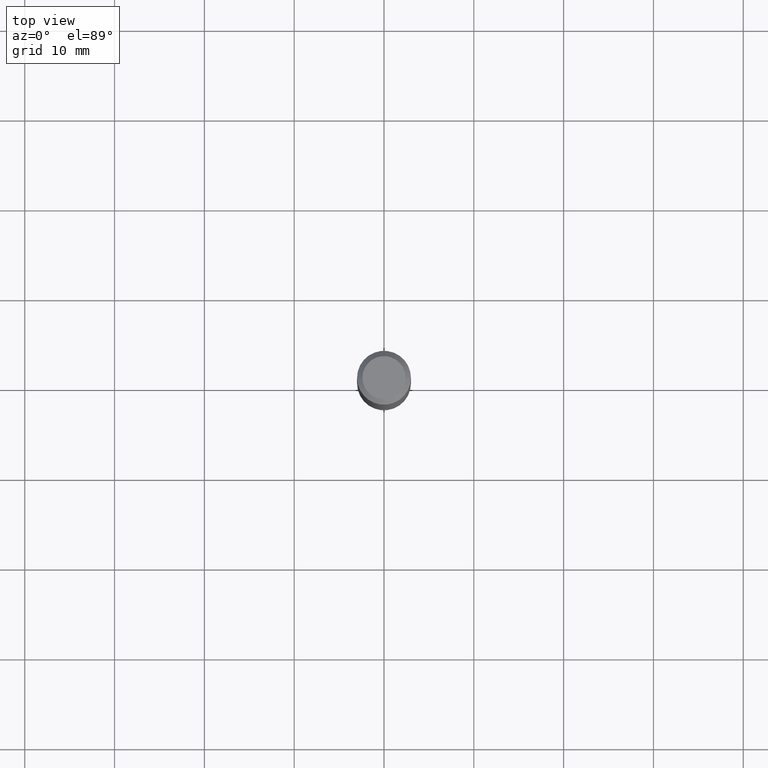
[diagram: clean part render]
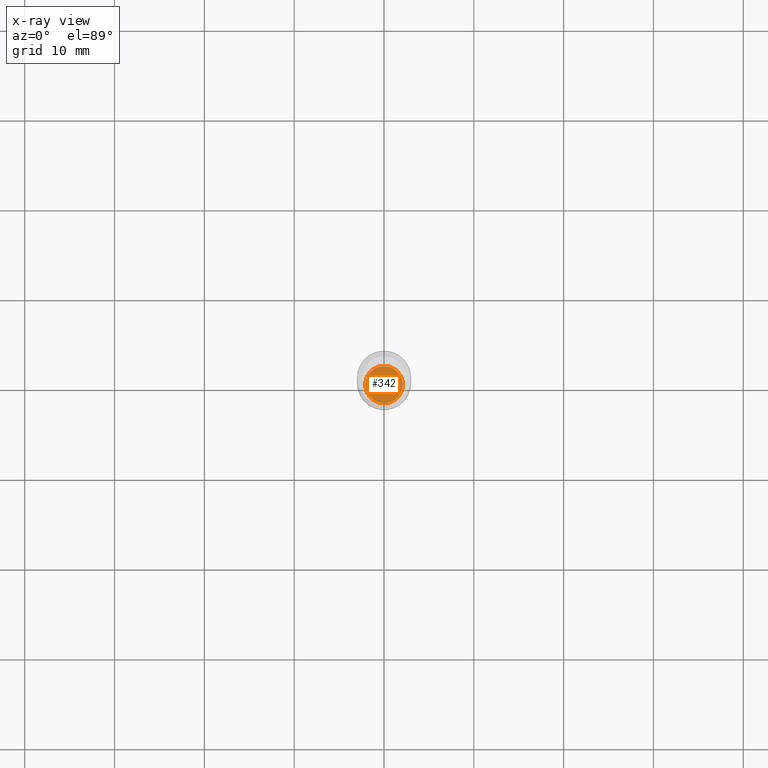
[diagram: x-ray — body ghosted, one internal face saturated and labeled with its STEP entity id]
A machine part, top view, then the same camera in x-ray: the body is ghosted and one INTERNAL B-rep face — a face not visible from any outside direction — is saturated and labeled: STEP entity #342.
In plain terms, the highlighted planar face has unit normal (-0, 0, 1).
Its self-contained STEP definition (entity closure, byte-faithful):
#7 = AXIS2_PLACEMENT_3D ( 'NONE', #442, #438, #93 ) ;
#60 = CIRCLE ( 'NONE', #323, 0.08219999999999999529 ) ;
#93 = DIRECTION ( 'NONE',  ( 1.000000000000000000, -6.982962677686265922E-15, 4.876176775795935793E-29 ) ) ;
#95 = AXIS2_PLACEMENT_3D ( 'NONE', #243, #480, #364 ) ;
#145 = CARTESIAN_POINT ( 'NONE',  ( -0.08219999999999999529, -5.599142132059488744E-15, -1.771700000000000497 ) ) ;
#158 = CARTESIAN_POINT ( 'NONE',  ( 0.08219999999999999529, -6.759857020134212754E-15, -1.771700000000000497 ) ) ;
#198 = PLANE ( 'NONE',  #7 ) ;
#207 = VERTEX_POINT ( 'NONE', #158 ) ;
#235 = ORIENTED_EDGE ( 'NONE', *, *, #344, .F. ) ;
#243 = CARTESIAN_POINT ( 'NONE',  ( 4.332637083918206987E-29, -6.185857488028401870E-15, -1.771700000000000497 ) ) ;
#262 = CARTESIAN_POINT ( 'NONE',  ( 4.332637083918206987E-29, -6.185857488028401870E-15, -1.771700000000000497 ) ) ;
#276 = ORIENTED_EDGE ( 'NONE', *, *, #384, .F. ) ;
#299 = DIRECTION ( 'NONE',  ( 1.000000000000000000, -6.982962677686266711E-15, 0.000000000000000000 ) ) ;
#304 = CIRCLE ( 'NONE', #95, 0.08219999999999999529 ) ;
#323 = AXIS2_PLACEMENT_3D ( 'NONE', #262, #375, #299 ) ;
#342 = ADVANCED_FACE ( 'NONE', ( #395 ), #198, .F. ) ;
#344 = EDGE_CURVE ( 'NONE', #207, #405, #304, .T. ) ;
#364 = DIRECTION ( 'NONE',  ( 1.000000000000000000, -6.982962677686266711E-15, 0.000000000000000000 ) ) ;
#375 = DIRECTION ( 'NONE',  ( -2.445468806185136597E-29, 3.491481338843145583E-15, 1.000000000000000000 ) ) ;
#384 = EDGE_CURVE ( 'NONE', #405, #207, #60, .T. ) ;
#395 = FACE_OUTER_BOUND ( 'NONE', #483, .T. ) ;
#405 = VERTEX_POINT ( 'NONE', #145 ) ;
#438 = DIRECTION ( 'NONE',  ( -2.438088387897960049E-29, 3.491481338843145188E-15, 1.000000000000000000 ) ) ;
#442 = CARTESIAN_POINT ( 'NONE',  ( 4.332637083918206987E-29, -6.185857488028401870E-15, -1.771700000000000497 ) ) ;
#480 = DIRECTION ( 'NONE',  ( -2.445468806185136597E-29, 3.491481338843145583E-15, 1.000000000000000000 ) ) ;
#483 = EDGE_LOOP ( 'NONE', ( #235, #276 ) ) ;